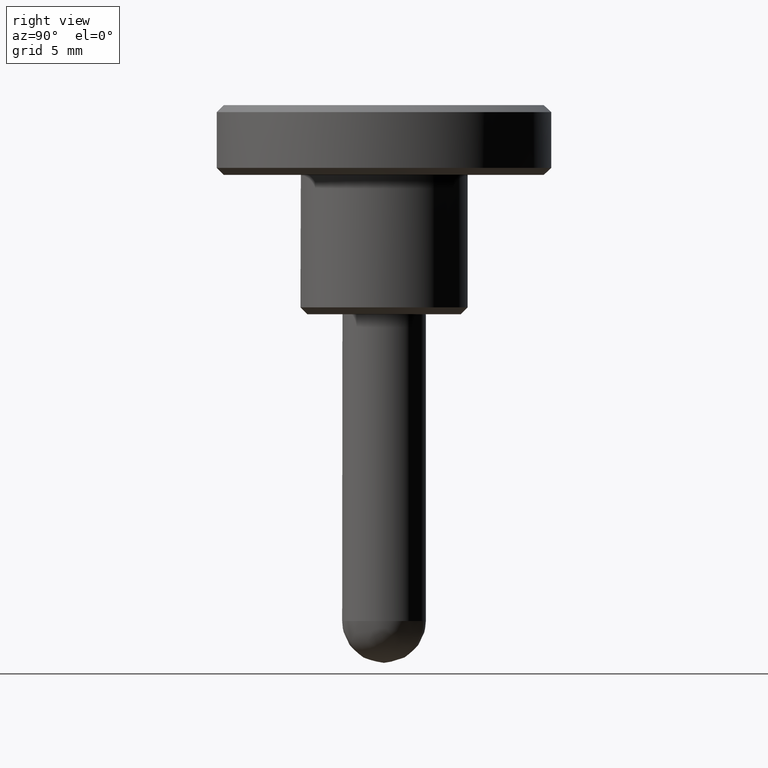
[diagram: clean part render]
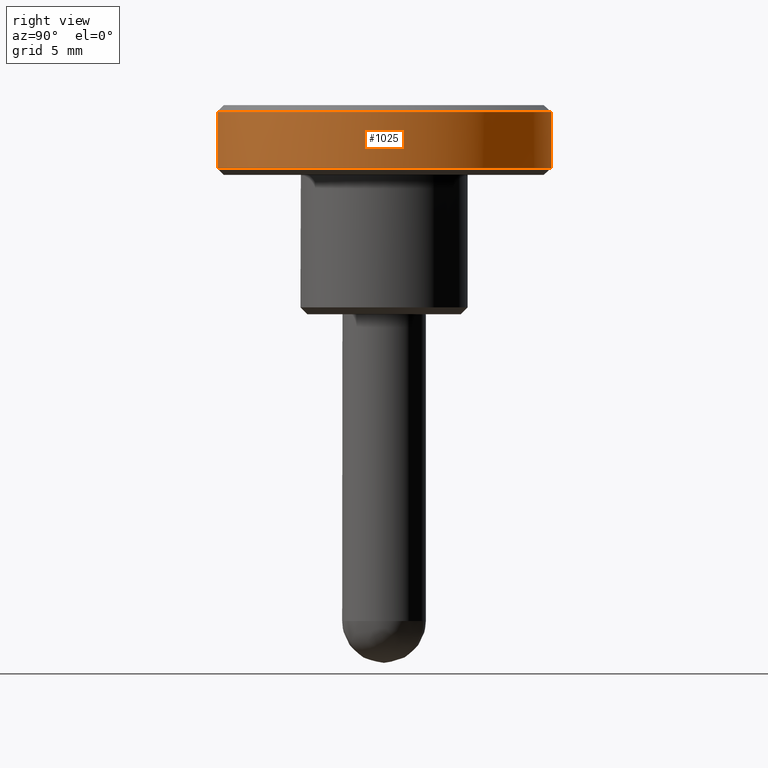
[diagram: same view with one face highlighted and labeled with its STEP entity id]
A machine part, right view. The second image highlights one B-rep face of the part: STEP entity #1025.
In plain terms, the highlighted face is a freeform B-spline surface patch.
Its self-contained STEP definition (entity closure, byte-faithful):
#150=CARTESIAN_POINT('',(1.489536033518189,-11.907194564835621,14.500000000000000));
#151=VERTEX_POINT('',#150);
#167=CARTESIAN_POINT('',(12.0,0.0,14.500000000000000));
#168=VERTEX_POINT('',#167);
#169=CARTESIAN_POINT('',(12.0,0.0,14.500000000000000));
#170=CARTESIAN_POINT('',(11.999999999999998,-10.592383186453967,14.500000000000000));
#171=CARTESIAN_POINT('',(1.489536033518189,-11.907194564835619,14.499999999999998));
#179=(BOUNDED_CURVE()B_SPLINE_CURVE(2,(#169,#170,#171),.UNSPECIFIED.,.F.,.U.)B_SPLINE_CURVE_WITH_KNOTS((3,3),(0.500000000000000,0.728526070786814),.UNSPECIFIED.)CURVE()GEOMETRIC_REPRESENTATION_ITEM()RATIONAL_B_SPLINE_CURVE((1.0,0.732265054177836,0.954005429804150))REPRESENTATION_ITEM(''));
#180=EDGE_CURVE('',#168,#151,#179,.T.);
#182=CARTESIAN_POINT('',(-0.104706601213104,11.999543179951580,14.499999999999931));
#183=VERTEX_POINT('',#182);
#184=CARTESIAN_POINT('',(-0.104706601213104,11.999543179951583,14.499999999999932));
#185=CARTESIAN_POINT('',(-0.052354297127088,12.000000000000004,14.500000000000004));
#186=CARTESIAN_POINT('',(0.0,12.0,14.500000000000000));
#187=CARTESIAN_POINT('',(12.0,12.0,14.500000000000000));
#188=CARTESIAN_POINT('',(12.0,0.0,14.500000000000000));
#196=(BOUNDED_CURVE()B_SPLINE_CURVE(2,(#184,#185,#186,#187,#188),.UNSPECIFIED.,.F.,.U.)B_SPLINE_CURVE_WITH_KNOTS((3,2,3),(0.248460279242271,0.250000000000000,0.500000000000000),.UNSPECIFIED.)CURVE()GEOMETRIC_REPRESENTATION_ITEM()RATIONAL_B_SPLINE_CURVE((0.996414429807096,0.998196104924780,1.0,0.707106781186548,1.0))REPRESENTATION_ITEM(''));
#197=EDGE_CURVE('',#183,#168,#196,.T.);
#361=CARTESIAN_POINT('',(-0.104706701761851,11.999543179074310,10.500000000000000));
#362=VERTEX_POINT('',#361);
#376=CARTESIAN_POINT('',(12.0,0.0,10.500000000000000));
#377=VERTEX_POINT('',#376);
#378=CARTESIAN_POINT('',(12.0,0.0,10.500000000000000));
#379=CARTESIAN_POINT('',(12.0,12.0,10.500000000000002));
#380=CARTESIAN_POINT('',(0.0,12.0,10.500000000000000));
#381=CARTESIAN_POINT('',(-0.052354347404331,12.000000000000002,10.500000000000005));
#382=CARTESIAN_POINT('',(-0.104706701761851,11.999543179074310,10.499999999999996));
#390=(BOUNDED_CURVE()B_SPLINE_CURVE(2,(#378,#379,#380,#381,#382),.UNSPECIFIED.,.F.,.U.)B_SPLINE_CURVE_WITH_KNOTS((3,2,3),(0.500000000000000,0.750000000000000,0.751539722233697),.UNSPECIFIED.)CURVE()GEOMETRIC_REPRESENTATION_ITEM()RATIONAL_B_SPLINE_CURVE((1.0,0.707106781186548,1.0,0.998196103195576,0.996414426391288))REPRESENTATION_ITEM(''));
#391=EDGE_CURVE('',#377,#362,#390,.T.);
#393=CARTESIAN_POINT('',(9.826393352523558,-6.887814869862043,10.500000000000520));
#394=VERTEX_POINT('',#393);
#395=CARTESIAN_POINT('',(9.826393352523558,-6.887814869862043,10.500000000000522));
#396=CARTESIAN_POINT('',(11.999999999999996,-3.786872943391239,10.500000000000000));
#397=CARTESIAN_POINT('',(12.0,0.0,10.500000000000000));
#405=(BOUNDED_CURVE()B_SPLINE_CURVE(2,(#395,#396,#397),.UNSPECIFIED.,.F.,.U.)B_SPLINE_CURVE_WITH_KNOTS((3,3),(0.401326273796825,0.500000000000000),.UNSPECIFIED.)CURVE()GEOMETRIC_REPRESENTATION_ITEM()RATIONAL_B_SPLINE_CURVE((0.860049271925723,0.884396538880139,1.0))REPRESENTATION_ITEM(''));
#406=EDGE_CURVE('',#394,#377,#405,.T.);
#444=CARTESIAN_POINT('',(1.489525036514831,-11.907195940500550,10.500000000000000));
#445=VERTEX_POINT('',#444);
#446=CARTESIAN_POINT('',(1.489525036514831,-11.907195940500550,10.500000000000004));
#447=CARTESIAN_POINT('',(6.771178001248341,-11.246490064456887,10.500000000000002));
#448=CARTESIAN_POINT('',(9.826393352523558,-6.887814869862043,10.500000000000522));
#456=(BOUNDED_CURVE()B_SPLINE_CURVE(2,(#446,#447,#448),.UNSPECIFIED.,.F.,.U.)B_SPLINE_CURVE_WITH_KNOTS((3,3),(0.271473773337378,0.401326273796825),.UNSPECIFIED.)CURVE()GEOMETRIC_REPRESENTATION_ITEM()RATIONAL_B_SPLINE_CURVE((0.954005732299056,0.828008792508995,0.860049271925722))REPRESENTATION_ITEM(''));
#457=EDGE_CURVE('',#445,#394,#456,.T.);
#990=CARTESIAN_POINT('',(1.489536024957952,-11.907194565906458,10.399999999999999));
#991=CARTESIAN_POINT('',(12.092793966029335,-10.580775097598652,10.399999999999999));
#992=CARTESIAN_POINT('',(11.999543076770051,0.104718425980487,10.400000000000000));
#993=CARTESIAN_POINT('',(11.894824650789566,12.104261502750537,10.399999999999999));
#994=CARTESIAN_POINT('',(-0.104718425980487,11.999543076770051,10.400000000000000));
#995=CARTESIAN_POINT('',(1.489536024957952,-11.907194565906458,14.602500000000010));
#996=CARTESIAN_POINT('',(12.092793966029335,-10.580775097598652,14.602500000000004));
#997=CARTESIAN_POINT('',(11.999543076770051,0.104718425980487,14.602499999999999));
#998=CARTESIAN_POINT('',(11.894824650789566,12.104261502750537,14.602499999999997));
#999=CARTESIAN_POINT('',(-0.104718425980487,11.999543076770051,14.602499999999999));
#1007=(BOUNDED_SURFACE()B_SPLINE_SURFACE(2,1,((#990,#995),(#991,#996),(#992,#997),(#993,#998),(#994,#999)),.UNSPECIFIED.,.F.,.F.,.U.)B_SPLINE_SURFACE_WITH_KNOTS((3,2,3),(2,2),(0.0,18.291670914395869,38.173921908304429),(0.0,4.202500000000006),.UNSPECIFIED.)GEOMETRIC_REPRESENTATION_ITEM()RATIONAL_B_SPLINE_SURFACE(((0.956886118190660,0.956886118190660),(0.730538238691624,0.730538238691624),(1.0,1.0),(0.707106781186548,0.707106781186548),(1.0,1.0)))REPRESENTATION_ITEM('')SURFACE());
#1008=ORIENTED_EDGE('',*,*,#180,.T.);
#1009=CARTESIAN_POINT('',(1.489525036514831,-11.907195940500550,10.500000000000000));
#1010=CARTESIAN_POINT('',(1.489536033518189,-11.907194564835621,14.500000000000000));
#1011=QUASI_UNIFORM_CURVE('',1,(#1009,#1010),.UNSPECIFIED.,.F.,.U.);
#1012=EDGE_CURVE('',#445,#151,#1011,.T.);
#1013=ORIENTED_EDGE('',*,*,#1012,.F.);
#1014=ORIENTED_EDGE('',*,*,#457,.T.);
#1015=ORIENTED_EDGE('',*,*,#406,.T.);
#1016=ORIENTED_EDGE('',*,*,#391,.T.);
#1017=CARTESIAN_POINT('',(-0.104706701761851,11.999543179074310,10.500000000000000));
#1018=CARTESIAN_POINT('',(-0.104706601213104,11.999543179951580,14.499999999999931));
#1019=QUASI_UNIFORM_CURVE('',1,(#1017,#1018),.UNSPECIFIED.,.F.,.U.);
#1020=EDGE_CURVE('',#362,#183,#1019,.T.);
#1021=ORIENTED_EDGE('',*,*,#1020,.T.);
#1022=ORIENTED_EDGE('',*,*,#197,.T.);
#1023=EDGE_LOOP('',(#1008,#1013,#1014,#1015,#1016,#1021,#1022));
#1024=FACE_OUTER_BOUND('',#1023,.T.);
#1025=ADVANCED_FACE('',(#1024),#1007,.T.);